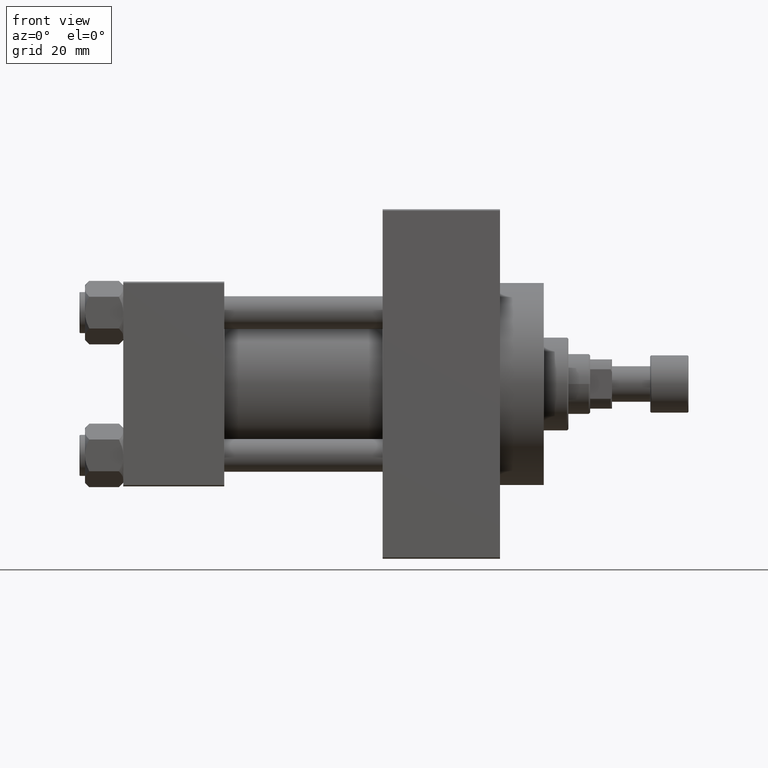
[diagram: clean part render]
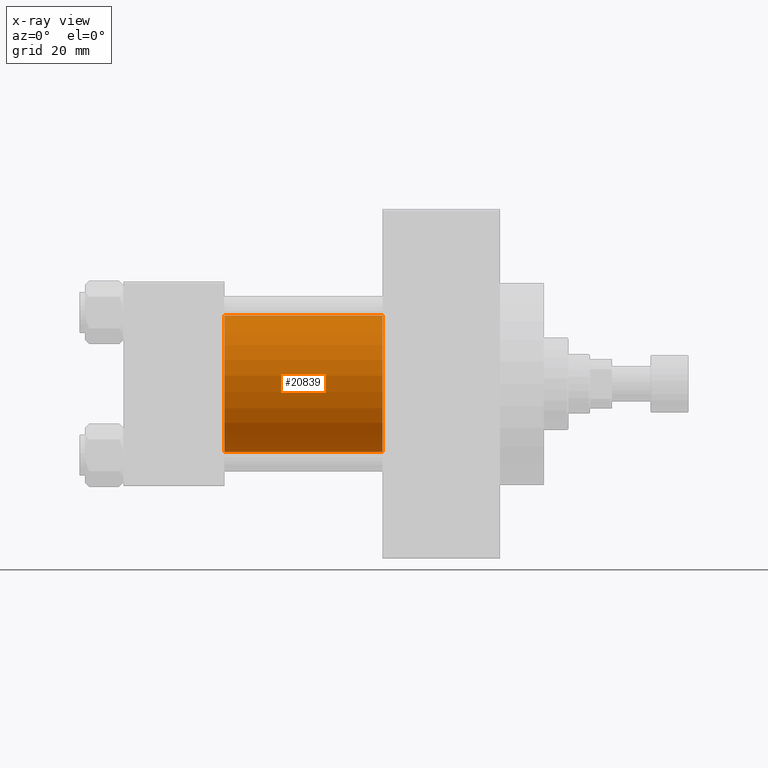
[diagram: x-ray — body ghosted, one internal face saturated and labeled with its STEP entity id]
A machine part, front view, then the same camera in x-ray: the body is ghosted and one INTERNAL B-rep face — a face not visible from any outside direction — is saturated and labeled: STEP entity #20839.
In plain terms, the highlighted cylindrical surface (partial cylindrical patch) has radius 25 mm, axis along (-1, -0, -0).
Its self-contained STEP definition (entity closure, byte-faithful):
#1691 = CARTESIAN_POINT ( 'NONE',  ( 37.00000000000000000, -2.602085213965210642E-15, 0.000000000000000000 ) ) ;
#2889 = CARTESIAN_POINT ( 'NONE',  ( 95.00000000000000000, 4.595317839031718093E-16, -25.00000000000000000 ) ) ;
#3439 = CARTESIAN_POINT ( 'NONE',  ( 95.00000000000000000, -2.602085213965210642E-15, 0.000000000000000000 ) ) ;
#6012 = DIRECTION ( 'NONE',  ( 0.000000000000000000, 0.000000000000000000, -1.000000000000000000 ) ) ;
#6141 = CARTESIAN_POINT ( 'NONE',  ( 95.00000000000000000, -2.602085213965210642E-15, 0.000000000000000000 ) ) ;
#6245 = VERTEX_POINT ( 'NONE', #7860 ) ;
#7860 = CARTESIAN_POINT ( 'NONE',  ( 95.00000000000000000, -2.602085213965210642E-15, 25.00000000000000000 ) ) ;
#8847 = CARTESIAN_POINT ( 'NONE',  ( 95.00000000000000000, -2.602085213965210642E-15, 25.00000000000000000 ) ) ;
#10661 = AXIS2_PLACEMENT_3D ( 'NONE', #6141, #42729, #35258 ) ;
#10828 = EDGE_LOOP ( 'NONE', ( #44002, #11105, #17385, #27960 ) ) ;
#11105 = ORIENTED_EDGE ( 'NONE', *, *, #11533, .T. ) ;
#11533 = EDGE_CURVE ( 'NONE', #17007, #45803, #14026, .T. ) ;
#12619 = AXIS2_PLACEMENT_3D ( 'NONE', #1691, #23382, #6012 ) ;
#14026 = LINE ( 'NONE', #43402, #26197 ) ;
#14865 = VECTOR ( 'NONE', #34360, 1000.000000000000000 ) ;
#17007 = VERTEX_POINT ( 'NONE', #2889 ) ;
#17385 = ORIENTED_EDGE ( 'NONE', *, *, #33043, .F. ) ;
#18374 = CIRCLE ( 'NONE', #10661, 25.00000000000000000 ) ;
#20839 = ADVANCED_FACE ( 'NONE', ( #44596 ), #36418, .F. ) ;
#22266 = EDGE_CURVE ( 'NONE', #6245, #45783, #37977, .T. ) ;
#23382 = DIRECTION ( 'NONE',  ( 1.000000000000000000, 0.000000000000000000, 0.000000000000000000 ) ) ;
#24090 = AXIS2_PLACEMENT_3D ( 'NONE', #3439, #32817, #36901 ) ;
#26197 = VECTOR ( 'NONE', #47008, 1000.000000000000000 ) ;
#27960 = ORIENTED_EDGE ( 'NONE', *, *, #22266, .F. ) ;
#29682 = CARTESIAN_POINT ( 'NONE',  ( 37.00000000000000000, 4.595317839031718093E-16, -25.00000000000000000 ) ) ;
#32817 = DIRECTION ( 'NONE',  ( -1.000000000000000000, -0.000000000000000000, -0.000000000000000000 ) ) ;
#33043 = EDGE_CURVE ( 'NONE', #45783, #45803, #39709, .T. ) ;
#33293 = CARTESIAN_POINT ( 'NONE',  ( 37.00000000000000000, -2.602085213965210642E-15, 25.00000000000000000 ) ) ;
#34360 = DIRECTION ( 'NONE',  ( -1.000000000000000000, -0.000000000000000000, -0.000000000000000000 ) ) ;
#35258 = DIRECTION ( 'NONE',  ( 0.000000000000000000, 0.000000000000000000, -1.000000000000000000 ) ) ;
#36418 = CYLINDRICAL_SURFACE ( 'NONE', #24090, 25.00000000000000000 ) ;
#36901 = DIRECTION ( 'NONE',  ( 0.000000000000000000, 0.000000000000000000, 1.000000000000000000 ) ) ;
#37977 = LINE ( 'NONE', #8847, #14865 ) ;
#39709 = CIRCLE ( 'NONE', #12619, 25.00000000000000000 ) ;
#42729 = DIRECTION ( 'NONE',  ( 1.000000000000000000, 0.000000000000000000, 0.000000000000000000 ) ) ;
#43402 = CARTESIAN_POINT ( 'NONE',  ( 95.00000000000000000, 4.595317839031718093E-16, -25.00000000000000000 ) ) ;
#43925 = EDGE_CURVE ( 'NONE', #6245, #17007, #18374, .T. ) ;
#44002 = ORIENTED_EDGE ( 'NONE', *, *, #43925, .T. ) ;
#44596 = FACE_OUTER_BOUND ( 'NONE', #10828, .T. ) ;
#45783 = VERTEX_POINT ( 'NONE', #33293 ) ;
#45803 = VERTEX_POINT ( 'NONE', #29682 ) ;
#47008 = DIRECTION ( 'NONE',  ( -1.000000000000000000, -0.000000000000000000, -0.000000000000000000 ) ) ;